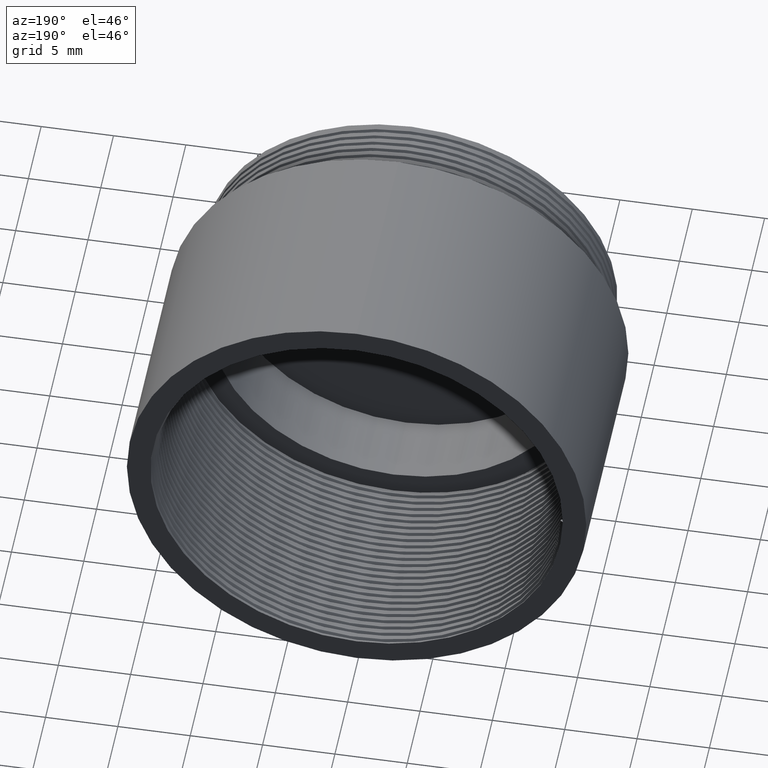
[diagram: clean part render]
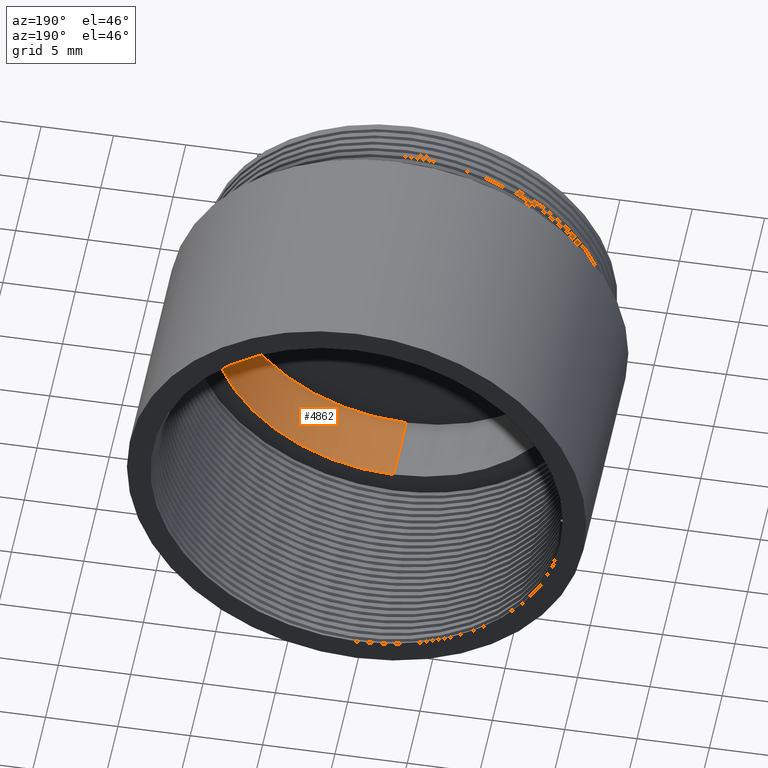
[diagram: same view with one face highlighted and labeled with its STEP entity id]
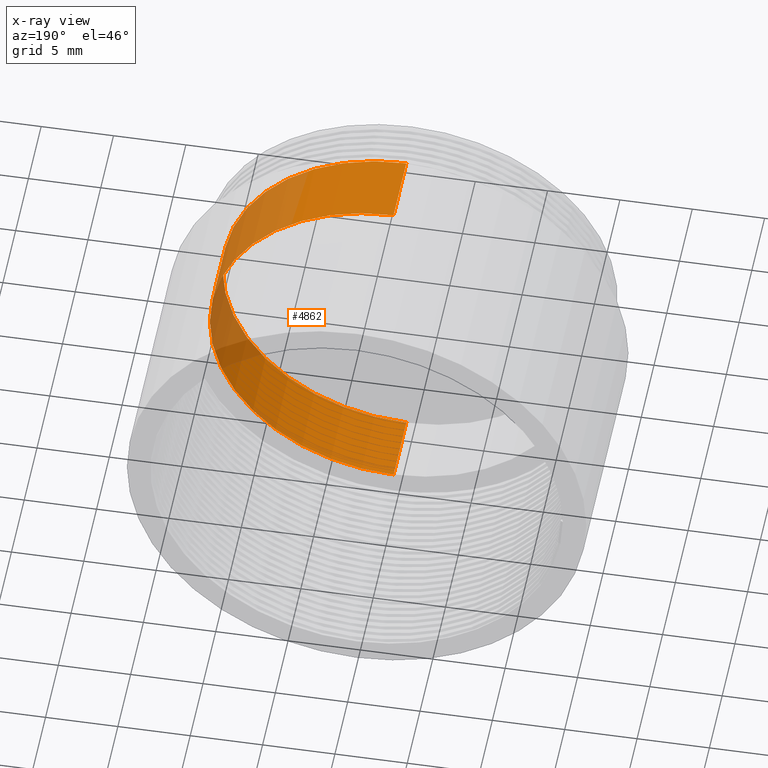
[diagram: x-ray of the same camera — body ghosted, the highlighted face saturated]
A machine part, auxiliary view. The second image highlights one B-rep face of the part: STEP entity #4862.
The next image is the same camera in x-ray: the body ghosted, the highlighted face saturated — about 27% of this face is hidden behind the body in this view.
In plain terms, the highlighted cylindrical surface (partial cylindrical patch) has radius 12.7 mm, axis along (0, -1, 0).
Its self-contained STEP definition (entity closure, byte-faithful):
#70 = VERTEX_POINT ( 'NONE', #590 ) ;
#296 = VECTOR ( 'NONE', #2754, 1000.000000000000000 ) ;
#318 = EDGE_CURVE ( 'NONE', #3210, #70, #3025, .T. ) ;
#479 = EDGE_CURVE ( 'NONE', #70, #1330, #6189, .T. ) ;
#590 = CARTESIAN_POINT ( 'NONE',  ( 1.555301434917139813E-15, 2.010000000000000231, 12.69999999999999929 ) ) ;
#945 = CARTESIAN_POINT ( 'NONE',  ( 0.000000000000000000, 7.000000000000000000, 0.000000000000000000 ) ) ;
#966 = CARTESIAN_POINT ( 'NONE',  ( 0.000000000000000000, 7.000000000000000000, -12.69999999999999929 ) ) ;
#997 = ORIENTED_EDGE ( 'NONE', *, *, #479, .F. ) ;
#1143 = CARTESIAN_POINT ( 'NONE',  ( 1.555301434917139813E-15, 7.000000000000000000, 12.69999999999999929 ) ) ;
#1330 = VERTEX_POINT ( 'NONE', #6195 ) ;
#1404 = CARTESIAN_POINT ( 'NONE',  ( 1.555301434917139813E-15, 0.000000000000000000, 12.69999999999999929 ) ) ;
#1469 = DIRECTION ( 'NONE',  ( 0.000000000000000000, 0.000000000000000000, 1.000000000000000000 ) ) ;
#1987 = ORIENTED_EDGE ( 'NONE', *, *, #318, .F. ) ;
#1995 = CARTESIAN_POINT ( 'NONE',  ( 0.000000000000000000, 2.010000000000000231, 0.000000000000000000 ) ) ;
#2140 = DIRECTION ( 'NONE',  ( 0.000000000000000000, 0.000000000000000000, -1.000000000000000000 ) ) ;
#2347 = VECTOR ( 'NONE', #4606, 1000.000000000000000 ) ;
#2582 = FACE_OUTER_BOUND ( 'NONE', #6154, .T. ) ;
#2674 = AXIS2_PLACEMENT_3D ( 'NONE', #1995, #6310, #1469 ) ;
#2754 = DIRECTION ( 'NONE',  ( 0.000000000000000000, -1.000000000000000000, 0.000000000000000000 ) ) ;
#2771 = AXIS2_PLACEMENT_3D ( 'NONE', #3651, #5802, #4203 ) ;
#3025 = LINE ( 'NONE', #1404, #2347 ) ;
#3105 = DIRECTION ( 'NONE',  ( 0.000000000000000000, -1.000000000000000000, 0.000000000000000000 ) ) ;
#3210 = VERTEX_POINT ( 'NONE', #1143 ) ;
#3651 = CARTESIAN_POINT ( 'NONE',  ( 0.000000000000000000, 0.000000000000000000, 0.000000000000000000 ) ) ;
#3817 = LINE ( 'NONE', #4307, #296 ) ;
#4203 = DIRECTION ( 'NONE',  ( 0.000000000000000000, 0.000000000000000000, -1.000000000000000000 ) ) ;
#4307 = CARTESIAN_POINT ( 'NONE',  ( 0.000000000000000000, 0.000000000000000000, -12.69999999999999929 ) ) ;
#4606 = DIRECTION ( 'NONE',  ( 0.000000000000000000, -1.000000000000000000, 0.000000000000000000 ) ) ;
#4764 = CYLINDRICAL_SURFACE ( 'NONE', #2771, 12.69999999999999929 ) ;
#4799 = ORIENTED_EDGE ( 'NONE', *, *, #5066, .T. ) ;
#4862 = ADVANCED_FACE ( 'NONE', ( #2582 ), #4764, .F. ) ;
#5000 = ORIENTED_EDGE ( 'NONE', *, *, #5358, .F. ) ;
#5037 = AXIS2_PLACEMENT_3D ( 'NONE', #945, #3105, #2140 ) ;
#5066 = EDGE_CURVE ( 'NONE', #6127, #1330, #3817, .T. ) ;
#5358 = EDGE_CURVE ( 'NONE', #6127, #3210, #6946, .T. ) ;
#5802 = DIRECTION ( 'NONE',  ( 0.000000000000000000, -1.000000000000000000, 0.000000000000000000 ) ) ;
#6127 = VERTEX_POINT ( 'NONE', #966 ) ;
#6154 = EDGE_LOOP ( 'NONE', ( #1987, #5000, #4799, #997 ) ) ;
#6189 = CIRCLE ( 'NONE', #2674, 12.69999999999999929 ) ;
#6195 = CARTESIAN_POINT ( 'NONE',  ( 0.000000000000000000, 2.010000000000000231, -12.69999999999999929 ) ) ;
#6310 = DIRECTION ( 'NONE',  ( 0.000000000000000000, 1.000000000000000000, 0.000000000000000000 ) ) ;
#6946 = CIRCLE ( 'NONE', #5037, 12.69999999999999929 ) ;